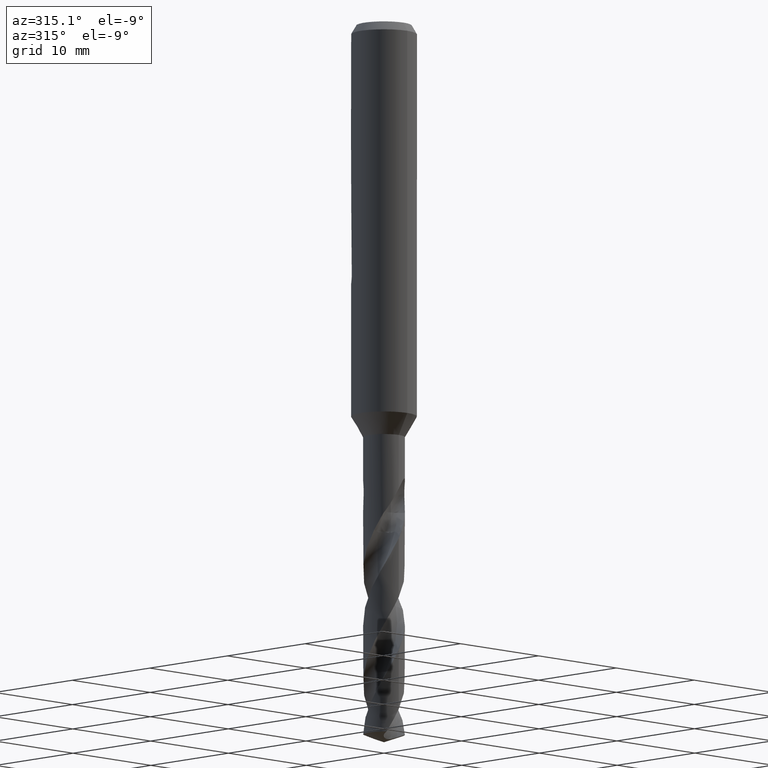
[diagram: clean part render]
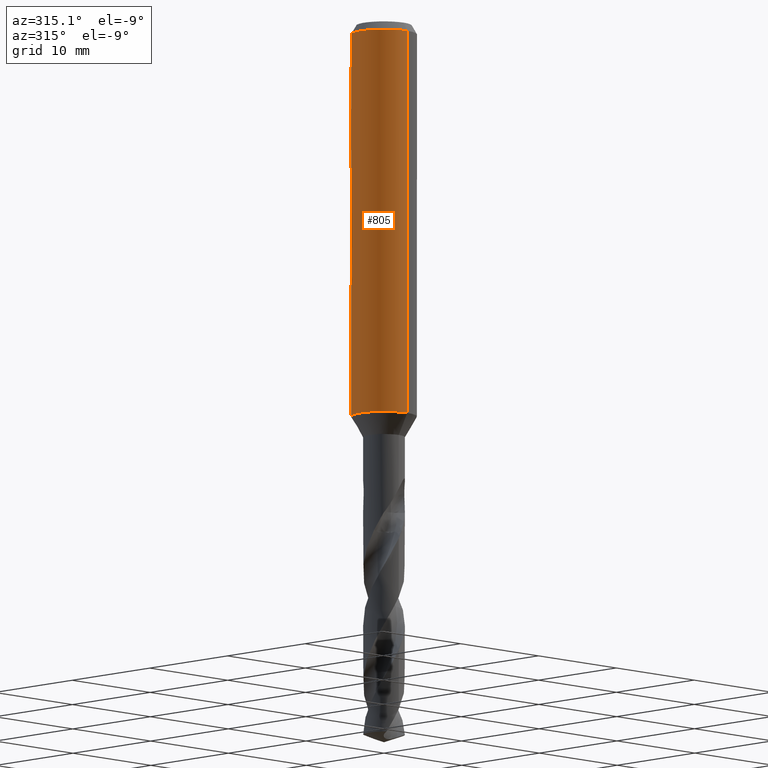
[diagram: same view with one face highlighted and labeled with its STEP entity id]
A machine part, auxiliary view. The second image highlights one B-rep face of the part: STEP entity #805.
In plain terms, the highlighted cylindrical surface (edge-blend (fillet) strip) has radius 3 mm, axis along (-0, -0, 1).
Its self-contained STEP definition (entity closure, byte-faithful):
#315=VERTEX_POINT('',#887);
#329=VERTEX_POINT('',#902);
#339=EDGE_CURVE('',#515,#397,#913,.T.);
#379=VERTEX_POINT('',#956);
#385=VERTEX_POINT('',#963);
#393=VERTEX_POINT('',#973);
#397=VERTEX_POINT('',#978);
#423=EDGE_CURVE('',#385,#329,#1008,.T.);
#461=VERTEX_POINT('',#1048);
#463=VERTEX_POINT('',#1050);
#495=VERTEX_POINT('',#1084);
#499=VERTEX_POINT('',#1088);
#515=VERTEX_POINT('',#1106);
#557=EDGE_CURVE('',#379,#315,#1151,.T.);
#573=EDGE_CURVE('',#463,#385,#1168,.T.);
#575=VERTEX_POINT('',#1170);
#617=EDGE_CURVE('',#701,#667,#1215,.T.);
#639=EDGE_CURVE('',#495,#575,#1240,.T.);
#661=EDGE_CURVE('',#499,#495,#1266,.T.);
#667=VERTEX_POINT('',#1272);
#675=EDGE_CURVE('',#315,#515,#1280,.T.);
#695=EDGE_CURVE('',#667,#499,#1301,.T.);
#701=VERTEX_POINT('',#1308);
#705=EDGE_CURVE('',#461,#393,#1312,.T.);
#729=EDGE_CURVE('',#397,#701,#1338,.T.);
#731=EDGE_CURVE('',#461,#743,#1340,.T.);
#737=EDGE_CURVE('',#329,#393,#1347,.T.);
#743=VERTEX_POINT('',#1353);
#747=EDGE_CURVE('',#743,#379,#1357,.T.);
#805=ADVANCED_FACE('',(#1421),#1422,.T.);
#857=EDGE_CURVE('',#575,#463,#1479,.T.);
#887=CARTESIAN_POINT('',(-2.52177371746177,1.62500994394466,-23.0110595671924));
#902=CARTESIAN_POINT('',(-2.46407913303377E-016,3.0,-34.0310253601033));
#913=ELLIPSE('',#1826,4.39883755691887,3.0);
#956=CARTESIAN_POINT('',(-1.79915003951659,2.40063723525806,-0.799999999999997));
#963=CARTESIAN_POINT('',(-1.337052752443,2.68557069115386,-33.3720803908795));
#973=CARTESIAN_POINT('',(0.0,3.0,-36.0));
#978=CARTESIAN_POINT('',(-3.67381906146713E-016,3.0,-25.0009117563346));
#1008=B_SPLINE_CURVE_WITH_KNOTS('',3,(#2691,#2692,#2693,#2694,#2695,#2696,#2697,#2698,#2699,#2700,#2701,#2702,#2703,#2704,#2705,#2706),.UNSPECIFIED.,.F.,.F.,(4,2,2,2,2,2,2,4),(5.66023402257373,6.29060333517104,6.60504483258975,6.91948633000846,7.23392782742717,7.54836932484587,7.86141901111221,8.17446869737855),.UNSPECIFIED.);
#1048=CARTESIAN_POINT('',(3.67381906146713E-016,-3.0,-36.0));
#1050=CARTESIAN_POINT('',(-3.67366600472444E-016,3.0,-32.7128911336578));
#1084=CARTESIAN_POINT('',(-1.0350734039088,2.81578107254819,-31.3171221986971));
#1088=CARTESIAN_POINT('',(-0.562333990228013,2.94682549253162,-31.3171221986971));
#1106=CARTESIAN_POINT('',(-2.2826599132014,1.94665449442457,-23.8713369953104));
#1151=ELLIPSE('',#4135,85.9611250435315,3.0);
#1168=ELLIPSE('',#4218,3.34478529612858,3.0);
#1170=CARTESIAN_POINT('',(-2.06254272401587E-016,3.0,-32.5000801551881));
#1215=B_SPLINE_CURVE_WITH_KNOTS('',3,(#4998,#4999,#5000,#5001,#5002,#5003,#5004,#5005,#5006,#5007,#5008,#5009,#5010,#5011,#5012,#5013,#5014,#5015,#5016,#5017,#5018,#5019,#5020,#5021,#5022,#5023,#5024),.UNSPECIFIED.,.F.,.F.,(4,2,3,2,2,2,2,2,2,2,2,2,4),(-0.54422824842136,-0.27211412421068,0.0,0.272114124210678,0.544228248421357,0.817906359646673,1.09158447087199,1.36255924571499,1.63353402055798,1.90530456554772,2.17707511053746,2.4488456555272,2.72061620051693),.UNSPECIFIED.);
#1240=B_SPLINE_CURVE_WITH_KNOTS('',3,(#5140,#5141,#5142,#5143,#5144,#5145,#5146,#5147,#5148,#5149,#5150,#5151,#5152,#5153),.UNSPECIFIED.,.F.,.F.,(4,2,2,2,2,2,4),(3.16026050654945,3.61086409539206,4.06146768423468,4.51207127307729,4.95991823802074,5.40776520296419,5.86282890530594),.UNSPECIFIED.);
#1266=CIRCLE('',#5464,3.0);
#1272=CARTESIAN_POINT('',(-0.486378944383045,2.96031003823262,-31.6432837483006));
#1280=B_SPLINE_CURVE_WITH_KNOTS('',3,(#5556,#5557,#5558,#5559,#5560,#5561,#5562,#5563,#5564,#5565,#5566,#5567),.UNSPECIFIED.,.F.,.F.,(4,2,2,2,2,4),(3.30788956954355,3.5751625180179,3.84243546649225,4.1097084149666,4.37698136344095,4.6442543119153),.UNSPECIFIED.);
#1301=B_SPLINE_CURVE_WITH_KNOTS('',3,(#6177,#6178,#6179,#6180,#6181,#6182,#6183,#6184,#6185,#6186,#6187,#6188,#6189,#6190,#6191,#6192,#6193,#6194,#6195,#6196,#6197,#6198,#6199,#6200,#6201,#6202,#6203),.UNSPECIFIED.,.F.,.F.,(4,2,3,2,2,2,2,2,2,2,2,2,4),(-0.54422824842136,-0.27211412421068,0.0,0.272114124210678,0.544228248421357,0.817906359646673,1.09158447087199,1.36255924571499,1.63353402055798,1.90530456554772,2.17707511053746,2.4488456555272,2.72061620051693),.UNSPECIFIED.);
#1308=CARTESIAN_POINT('',(-1.20768269592175E-015,3.0,-32.0232688117743));
#1312=CIRCLE('',#6825,3.0);
#1338=LINE('',#7163,#7164);
#1340=LINE('',#7167,#7168);
#1347=LINE('',#7177,#7178);
#1353=CARTESIAN_POINT('',(3.67381906146713E-016,-3.0,-0.799999999999997));
#1357=CIRCLE('',#7190,3.0);
#1421=FACE_OUTER_BOUND('',#7983,.T.);
#1422=CYLINDRICAL_SURFACE('',#7984,3.0);
#1479=LINE('',#8756,#8757);
#1826=AXIS2_PLACEMENT_3D('',#8816,#8817,#8818);
#2691=CARTESIAN_POINT('',(-1.53050642192579,2.58022287650581,-33.0319811255889));
#2692=CARTESIAN_POINT('',(-1.44691631248335,2.62980577312329,-33.2314887010961));
#2693=CARTESIAN_POINT('',(-1.32276760444366,2.69707077181617,-33.4113258593841));
#2694=CARTESIAN_POINT('',(-1.10973155101076,2.78826898930335,-33.6245951706909));
#2695=CARTESIAN_POINT('',(-1.02948996220254,2.81934349084513,-33.6916117853674));
#2696=CARTESIAN_POINT('',(-0.853932698223484,2.87738531454781,-33.8105216600777));
#2697=CARTESIAN_POINT('',(-0.758609991487907,2.90431263574779,-33.8624240602539));
#2698=CARTESIAN_POINT('',(-0.558469552260235,2.94934446690523,-33.9464055954533));
#2699=CARTESIAN_POINT('',(-0.453457041446381,2.96746268462387,-33.9785511641911));
#2700=CARTESIAN_POINT('',(-0.240810292537893,2.99223469602914,-34.0209924679526));
#2701=CARTESIAN_POINT('',(-0.133171317626829,2.99887501234033,-34.0312723335086));
#2702=CARTESIAN_POINT('',(0.0759830626177195,3.00085245803086,-34.0312723335086));
#2703=CARTESIAN_POINT('',(0.183273473896684,2.99629272230549,-34.0210815541729));
#2704=CARTESIAN_POINT('',(0.39543915272815,2.97573303917486,-33.9788816901513));
#2705=CARTESIAN_POINT('',(0.500318639064909,2.95974677710468,-33.9468871509919));
#2706=CARTESIAN_POINT('',(0.600330982089903,2.93932011049205,-33.9050368602192));
#4135=AXIS2_PLACEMENT_3D('',#9046,#9047,#9048);
#4218=AXIS2_PLACEMENT_3D('',#9059,#9060,#9061);
#4998=CARTESIAN_POINT('',(0.665621182276714,2.92522622060321,-30.8140957881762));
#4999=CARTESIAN_POINT('',(0.728850563417096,2.91083867849353,-30.877518087557));
#5000=CARTESIAN_POINT('',(0.783900459387161,2.89602337967411,-30.9578702196133));
#5001=CARTESIAN_POINT('',(0.857188692916628,2.87518328740958,-31.1345580124299));
#5002=CARTESIAN_POINT('',(0.875400981188567,2.86943777108584,-31.2309373045166));
#5003=CARTESIAN_POINT('',(0.875400981188567,2.86943777108584,-31.3216420125868));
#5004=CARTESIAN_POINT('',(0.875400981188567,2.86943777108584,-31.412346720657));
#5005=CARTESIAN_POINT('',(0.857188692916629,2.87518328740958,-31.5087260127437));
#5006=CARTESIAN_POINT('',(0.783900459387161,2.89602337967411,-31.6854138055602));
#5007=CARTESIAN_POINT('',(0.728850563417096,2.91083867849353,-31.7657659376165));
#5008=CARTESIAN_POINT('',(0.60202838769231,2.93969645569731,-31.8929750586276));
#5009=CARTESIAN_POINT('',(0.5214778595293,2.95568533572518,-31.9483797636259));
#5010=CARTESIAN_POINT('',(0.34429909105015,2.98152194310932,-32.0221641076746));
#5011=CARTESIAN_POINT('',(0.247628172090375,2.99115403786358,-32.0405166027747));
#5012=CARTESIAN_POINT('',(0.0663244946631877,3.00062654348629,-32.0405166027747));
#5013=CARTESIAN_POINT('',(-0.0299285908853379,3.00115720326599,-32.0224875186921));
#5014=CARTESIAN_POINT('',(-0.206881310600538,2.99416773126077,-31.949244373347));
#5015=CARTESIAN_POINT('',(-0.287593937381961,2.98687212067831,-31.8940404490632));
#5016=CARTESIAN_POINT('',(-0.415200117492864,2.97182576996222,-31.7666805419979));
#5017=CARTESIAN_POINT('',(-0.470604049431396,2.96309385107775,-31.6859121102136));
#5018=CARTESIAN_POINT('',(-0.544183869965539,2.95046729924835,-31.5086992019516));
#5019=CARTESIAN_POINT('',(-0.562348199187247,2.94682278104247,-31.41223219425));
#5020=CARTESIAN_POINT('',(-0.562348199187247,2.94682278104247,-31.2310518309235));
#5021=CARTESIAN_POINT('',(-0.54418386996554,2.95046729924835,-31.134584823222));
#5022=CARTESIAN_POINT('',(-0.4706040494314,2.96309385107775,-30.95737191496));
#5023=CARTESIAN_POINT('',(-0.415200117492863,2.97182576996222,-30.8766034831756));
#5024=CARTESIAN_POINT('',(-0.351303479704285,2.97935997575782,-30.812830162452));
#5140=CARTESIAN_POINT('',(-0.944028754947609,2.84759718180646,-30.87109591768));
#5141=CARTESIAN_POINT('',(-1.00479265183033,2.82745289805341,-31.0168616503562));
#5142=CARTESIAN_POINT('',(-1.03510901790186,2.81576798068631,-31.1761006644519));
#5143=CARTESIAN_POINT('',(-1.03510901790186,2.81576798068631,-31.4765030570137));
#5144=CARTESIAN_POINT('',(-1.00479265183033,2.82745289805341,-31.6357420711094));
#5145=CARTESIAN_POINT('',(-0.88326485806506,2.86774146555976,-31.9272735364618));
#5146=CARTESIAN_POINT('',(-0.792109261194285,2.89554580131596,-32.0596991578702));
#5147=CARTESIAN_POINT('',(-0.582867737485067,2.94478284423827,-32.2682275153448));
#5148=CARTESIAN_POINT('',(-0.450640829386874,2.96956027684007,-32.358826497016));
#5149=CARTESIAN_POINT('',(-0.159819744133953,2.99930375982357,-32.4794282329782));
#5150=CARTESIAN_POINT('',(-0.00114290335869099,3.00371168811663,-32.5093686300866));
#5151=CARTESIAN_POINT('',(0.299461057962613,2.98886806232847,-32.5093686300866));
#5152=CARTESIAN_POINT('',(0.459264276215476,2.96836791045541,-32.4785566268234));
#5153=CARTESIAN_POINT('',(0.604975334200916,2.93836771779988,-32.4175314011172));
#5464=AXIS2_PLACEMENT_3D('',#9168,#9169,#9170);
#5556=CARTESIAN_POINT('',(-2.50249686713845,1.65454206049959,-22.7851412014176));
#5557=CARTESIAN_POINT('',(-2.51582947593657,1.63437647323784,-22.8732242022064));
#5558=CARTESIAN_POINT('',(-2.52224462272648,1.62427893636757,-22.9638479804106));
#5559=CARTESIAN_POINT('',(-2.52224462272648,1.62427893636757,-23.1420299460602));
#5560=CARTESIAN_POINT('',(-2.51582947593657,1.63437647323784,-23.2326537242643));
#5561=CARTESIAN_POINT('',(-2.48916425834033,1.67470764776135,-23.408819725842));
#5562=CARTESIAN_POINT('',(-2.46888600291622,1.7049378084188,-23.4943584779312));
#5563=CARTESIAN_POINT('',(-2.41423408090567,1.78148417509052,-23.6532336111416));
#5564=CARTESIAN_POINT('',(-2.37970549766852,1.82791383934016,-23.7268045582116));
#5565=CARTESIAN_POINT('',(-2.29788287508865,1.92976722949031,-23.8571075060433));
#5566=CARTESIAN_POINT('',(-2.25053184097059,1.98513859743127,-23.9138446323197));
#5567=CARTESIAN_POINT('',(-2.1993251643641,2.0403354678569,-23.961472197729));
#6177=CARTESIAN_POINT('',(0.665621182276714,2.92522622060321,-30.8140957881762));
#6178=CARTESIAN_POINT('',(0.728850563417096,2.91083867849353,-30.877518087557));
#6179=CARTESIAN_POINT('',(0.783900459387161,2.89602337967411,-30.9578702196133));
#6180=CARTESIAN_POINT('',(0.857188692916628,2.87518328740958,-31.1345580124299));
#6181=CARTESIAN_POINT('',(0.875400981188567,2.86943777108584,-31.2309373045166));
#6182=CARTESIAN_POINT('',(0.875400981188567,2.86943777108584,-31.3216420125868));
#6183=CARTESIAN_POINT('',(0.875400981188567,2.86943777108584,-31.412346720657));
#6184=CARTESIAN_POINT('',(0.857188692916629,2.87518328740958,-31.5087260127437));
#6185=CARTESIAN_POINT('',(0.783900459387161,2.89602337967411,-31.6854138055602));
#6186=CARTESIAN_POINT('',(0.728850563417096,2.91083867849353,-31.7657659376165));
#6187=CARTESIAN_POINT('',(0.60202838769231,2.93969645569731,-31.8929750586276));
#6188=CARTESIAN_POINT('',(0.5214778595293,2.95568533572518,-31.9483797636259));
#6189=CARTESIAN_POINT('',(0.34429909105015,2.98152194310932,-32.0221641076746));
#6190=CARTESIAN_POINT('',(0.247628172090375,2.99115403786358,-32.0405166027747));
#6191=CARTESIAN_POINT('',(0.0663244946631877,3.00062654348629,-32.0405166027747));
#6192=CARTESIAN_POINT('',(-0.0299285908853379,3.00115720326599,-32.0224875186921));
#6193=CARTESIAN_POINT('',(-0.206881310600538,2.99416773126077,-31.949244373347));
#6194=CARTESIAN_POINT('',(-0.287593937381961,2.98687212067831,-31.8940404490632));
#6195=CARTESIAN_POINT('',(-0.415200117492864,2.97182576996222,-31.7666805419979));
#6196=CARTESIAN_POINT('',(-0.470604049431396,2.96309385107775,-31.6859121102136));
#6197=CARTESIAN_POINT('',(-0.544183869965539,2.95046729924835,-31.5086992019516));
#6198=CARTESIAN_POINT('',(-0.562348199187247,2.94682278104247,-31.41223219425));
#6199=CARTESIAN_POINT('',(-0.562348199187247,2.94682278104247,-31.2310518309235));
#6200=CARTESIAN_POINT('',(-0.54418386996554,2.95046729924835,-31.134584823222));
#6201=CARTESIAN_POINT('',(-0.4706040494314,2.96309385107775,-30.95737191496));
#6202=CARTESIAN_POINT('',(-0.415200117492863,2.97182576996222,-30.8766034831756));
#6203=CARTESIAN_POINT('',(-0.351303479704285,2.97935997575782,-30.812830162452));
#6825=AXIS2_PLACEMENT_3D('',#9184,#9185,#9186);
#7163=CARTESIAN_POINT('',(-3.67381906146713E-016,3.0,-18.4));
#7164=VECTOR('',#9208,1.0);
#7167=CARTESIAN_POINT('',(3.67381906146713E-016,-3.0,-18.4));
#7168=VECTOR('',#9209,1.0);
#7177=CARTESIAN_POINT('',(-3.67381906146713E-016,3.0,-18.4));
#7178=VECTOR('',#9223,1.0);
#7190=AXIS2_PLACEMENT_3D('',#9227,#9228,#9229);
#7983=EDGE_LOOP('',(#9293,#9294,#9295,#9296,#9297,#9298,#9299,#9300,#9301,#9302,#9303,#9304,#9305,#9306,#9307));
#7984=AXIS2_PLACEMENT_3D('',#9308,#9309,#9310);
#8756=CARTESIAN_POINT('',(-3.67381906146713E-016,3.0,-18.4));
#8757=VECTOR('',#9361,1.0);
#8816=CARTESIAN_POINT('',(0.0,0.0,-21.7838056262606));
#8817=DIRECTION('',(0.0,-0.731353701619171,-0.681998360062499));
#8818=DIRECTION('',(0.0,0.681998360062499,-0.731353701619171));
#9046=CARTESIAN_POINT('',(0.0,0.0,-69.5452559092481));
#9047=DIRECTION('',(0.0,-0.999390827019096,0.0348994967025009));
#9048=DIRECTION('',(0.0,0.0348994967025009,0.999390827019096));
#9059=CARTESIAN_POINT('',(0.0,0.0,-32.7128911336578));
#9060=DIRECTION('',(-0.442195774284071,0.0,0.896918556617774));
#9061=DIRECTION('',(0.896918556617774,-0.0,0.442195774284071));
#9168=CARTESIAN_POINT('',(0.0,0.0,-31.3171221986971));
#9169=DIRECTION('',(0.0,-0.0,1.0));
#9170=DIRECTION('',(0.0,1.0,0.0));
#9184=CARTESIAN_POINT('',(0.0,0.0,-36.0));
#9185=DIRECTION('',(0.0,0.0,-1.0));
#9186=DIRECTION('',(0.0,1.0,0.0));
#9208=DIRECTION('',(0.0,0.0,-1.0));
#9209=DIRECTION('',(-0.0,-0.0,1.0));
#9223=DIRECTION('',(0.0,0.0,-1.0));
#9227=CARTESIAN_POINT('',(0.0,0.0,-0.799999999999997));
#9228=DIRECTION('',(0.0,0.0,-1.0));
#9229=DIRECTION('',(0.0,1.0,0.0));
#9293=ORIENTED_EDGE('',*,*,#729,.T.);
#9294=ORIENTED_EDGE('',*,*,#617,.T.);
#9295=ORIENTED_EDGE('',*,*,#695,.T.);
#9296=ORIENTED_EDGE('',*,*,#661,.T.);
#9297=ORIENTED_EDGE('',*,*,#639,.T.);
#9298=ORIENTED_EDGE('',*,*,#857,.T.);
#9299=ORIENTED_EDGE('',*,*,#573,.T.);
#9300=ORIENTED_EDGE('',*,*,#423,.T.);
#9301=ORIENTED_EDGE('',*,*,#737,.T.);
#9302=ORIENTED_EDGE('',*,*,#705,.F.);
#9303=ORIENTED_EDGE('',*,*,#731,.T.);
#9304=ORIENTED_EDGE('',*,*,#747,.T.);
#9305=ORIENTED_EDGE('',*,*,#557,.T.);
#9306=ORIENTED_EDGE('',*,*,#675,.T.);
#9307=ORIENTED_EDGE('',*,*,#339,.T.);
#9308=CARTESIAN_POINT('',(0.0,0.0,-18.4));
#9309=DIRECTION('',(-0.0,-0.0,1.0));
#9310=DIRECTION('',(0.0,1.0,0.0));
#9361=DIRECTION('',(0.0,0.0,-1.0));